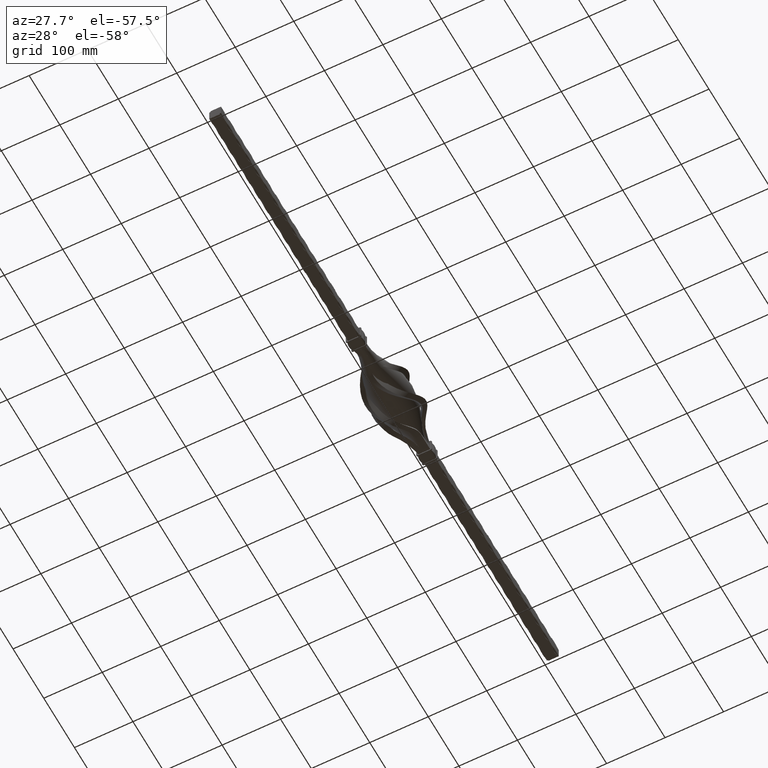
[diagram: clean part render]
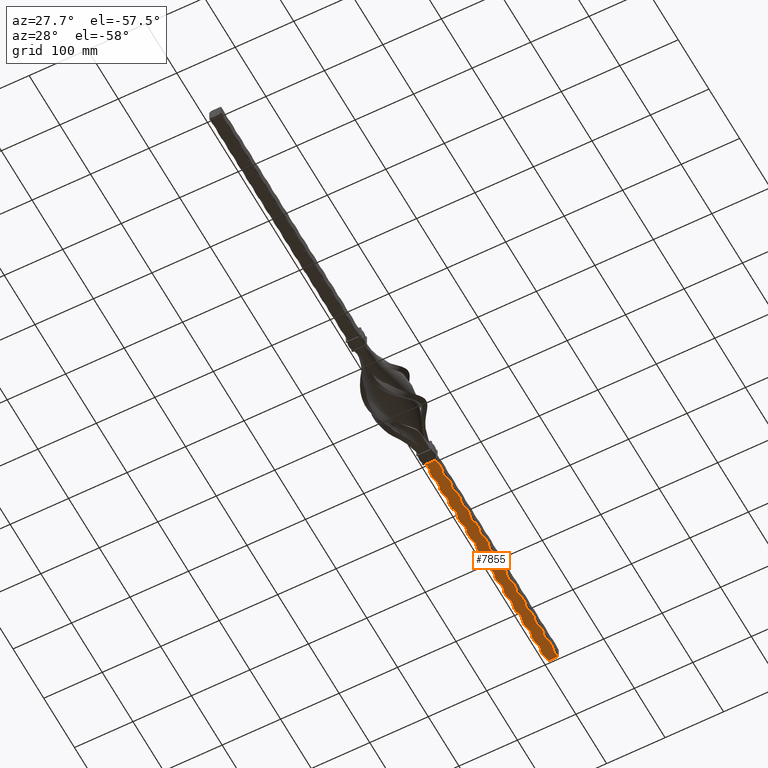
[diagram: same view with one face highlighted and labeled with its STEP entity id]
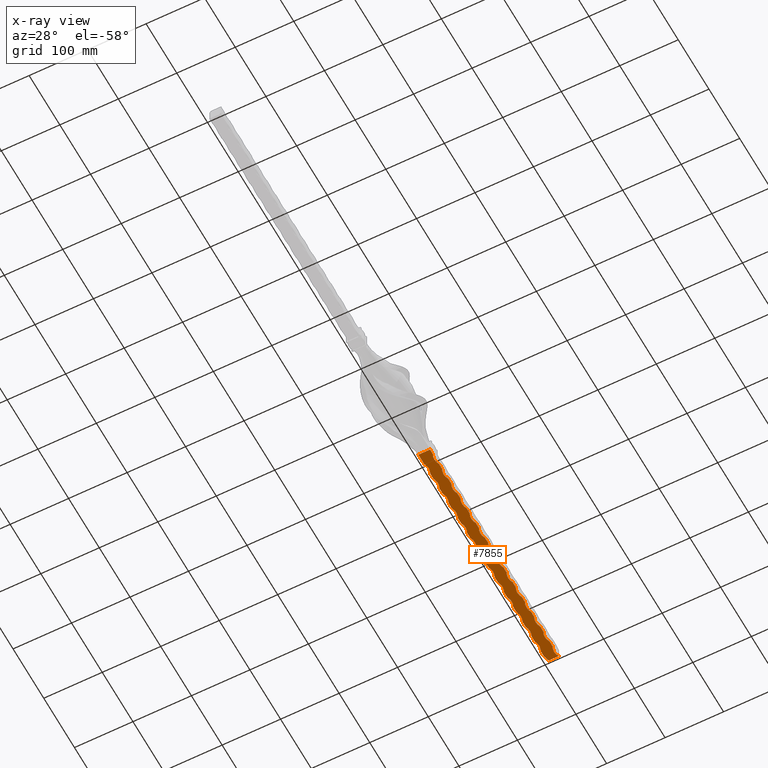
[diagram: x-ray of the same camera — body ghosted, the highlighted face saturated]
A machine part, auxiliary view. The second image highlights one B-rep face of the part: STEP entity #7855.
The next image is the same camera in x-ray: the body ghosted, the highlighted face saturated — about 0% of this face is hidden behind the body in this view.
In plain terms, the highlighted planar face has unit normal (0, -0, 1).
Its self-contained STEP definition (entity closure, byte-faithful):
#59 = DIRECTION ( 'NONE',  ( -0.000000000000000000, -1.000000000000000000, -0.000000000000000000 ) ) ;
#153 = CARTESIAN_POINT ( 'NONE',  ( 28.75000000000003908, 184.9999999999999432, -9.999999999999609201 ) ) ;
#184 = EDGE_CURVE ( 'NONE', #20435, #13915, #7374, .T. ) ;
#218 = CARTESIAN_POINT ( 'NONE',  ( 10.00000000000000178, 434.9999999999999432, -9.999999999999864997 ) ) ;
#244 = DIRECTION ( 'NONE',  ( 1.000000000000000000, 0.000000000000000000, 1.004098764918338334E-14 ) ) ;
#350 = VERTEX_POINT ( 'NONE', #19565 ) ;
#376 = EDGE_CURVE ( 'NONE', #17358, #2939, #22392, .T. ) ;
#385 = VECTOR ( 'NONE', #17832, 1000.000000000000000 ) ;
#523 = DIRECTION ( 'NONE',  ( 1.000000000000000000, 0.000000000000000000, 1.004098764918338334E-14 ) ) ;
#577 = CARTESIAN_POINT ( 'NONE',  ( 10.00000000000000000, 114.9999999999999858, -10.00000000000000355 ) ) ;
#621 = DIRECTION ( 'NONE',  ( 1.000000000000000000, 0.000000000000000000, 1.044915787882498139E-14 ) ) ;
#757 = EDGE_CURVE ( 'NONE', #13436, #22977, #13864, .T. ) ;
#814 = VERTEX_POINT ( 'NONE', #6841 ) ;
#843 = DIRECTION ( 'NONE',  ( -0.000000000000000000, -1.000000000000000000, -0.000000000000000000 ) ) ;
#938 = DIRECTION ( 'NONE',  ( 1.000000000000000000, -5.224578939412490694E-15, 1.044915787882498139E-14 ) ) ;
#971 = VERTEX_POINT ( 'NONE', #22263 ) ;
#1074 = ORIENTED_EDGE ( 'NONE', *, *, #2941, .T. ) ;
#1271 = VECTOR ( 'NONE', #26407, 1000.000000000000000 ) ;
#1278 = ORIENTED_EDGE ( 'NONE', *, *, #10161, .T. ) ;
#1279 = CARTESIAN_POINT ( 'NONE',  ( 28.75000000000003908, 124.9999999999999432, -9.999999999999594991 ) ) ;
#1332 = AXIS2_PLACEMENT_3D ( 'NONE', #11057, #4961, #621 ) ;
#1477 = CARTESIAN_POINT ( 'NONE',  ( -28.74999999999994316, 224.9999999999999716, -10.00000000000029843 ) ) ;
#1480 = CARTESIAN_POINT ( 'NONE',  ( 10.00000000000000000, 114.9999999999999858, -10.00000000000000355 ) ) ;
#1484 = LINE ( 'NONE', #7404, #20395 ) ;
#1590 = VERTEX_POINT ( 'NONE', #14762 ) ;
#1617 = CARTESIAN_POINT ( 'NONE',  ( 28.75000000000003908, 244.9999999999999432, -9.999999999999626965 ) ) ;
#1626 = CARTESIAN_POINT ( 'NONE',  ( -9.999999999999895195, 214.9999999999999716, -10.00000000000010303 ) ) ;
#1649 = DIRECTION ( 'NONE',  ( 1.000000000000000000, 0.000000000000000000, 1.004098764918338334E-14 ) ) ;
#1680 = CARTESIAN_POINT ( 'NONE',  ( -28.74999999999994316, 345.0000000000000000, -10.00000000000029843 ) ) ;
#1796 = VERTEX_POINT ( 'NONE', #10467 ) ;
#1818 = DIRECTION ( 'NONE',  ( -0.000000000000000000, -1.000000000000000000, -0.000000000000000000 ) ) ;
#1819 = VERTEX_POINT ( 'NONE', #14583 ) ;
#1823 = DIRECTION ( 'NONE',  ( 1.000000000000000000, 0.000000000000000000, 1.004098764918338334E-14 ) ) ;
#1853 = EDGE_CURVE ( 'NONE', #23698, #814, #21979, .T. ) ;
#1855 = EDGE_CURVE ( 'NONE', #23836, #16037, #19371, .T. ) ;
#1868 = VERTEX_POINT ( 'NONE', #2561 ) ;
#1896 = VECTOR ( 'NONE', #10402, 1000.000000000000000 ) ;
#1993 = CARTESIAN_POINT ( 'NONE',  ( 28.75000000000003908, 514.9999999999998863, -9.999999999999699796 ) ) ;
#2031 = AXIS2_PLACEMENT_3D ( 'NONE', #19669, #11418, #5057 ) ;
#2075 = CARTESIAN_POINT ( 'NONE',  ( 10.00000000000000000, 114.9999999999999858, -10.00000000000000355 ) ) ;
#2083 = DIRECTION ( 'NONE',  ( -1.040834085586095143E-14, 0.000000000000000000, 1.000000000000000000 ) ) ;
#2206 = EDGE_CURVE ( 'NONE', #3441, #18161, #12496, .T. ) ;
#2292 = DIRECTION ( 'NONE',  ( 1.000000000000000000, 0.000000000000000000, 1.004098764918338334E-14 ) ) ;
#2331 = EDGE_CURVE ( 'NONE', #22323, #17349, #17050, .T. ) ;
#2420 = CARTESIAN_POINT ( 'NONE',  ( 28.75000000000003908, 484.9999999999999432, -9.999999999999692690 ) ) ;
#2424 = CARTESIAN_POINT ( 'NONE',  ( 10.00000000000000000, 114.9999999999999858, -10.00000000000000355 ) ) ;
#2444 = DIRECTION ( 'NONE',  ( -1.074140776324849839E-14, 0.000000000000000000, 1.000000000000000000 ) ) ;
#2449 = ORIENTED_EDGE ( 'NONE', *, *, #17950, .T. ) ;
#2461 = CARTESIAN_POINT ( 'NONE',  ( -10.00000000000000178, 385.0000000000001137, -10.00000000000010303 ) ) ;
#2478 = CARTESIAN_POINT ( 'NONE',  ( 10.00000000000000000, 114.9999999999999858, -10.00000000000000355 ) ) ;
#2561 = CARTESIAN_POINT ( 'NONE',  ( -10.00000000000000178, 505.0000000000001137, -10.00000000000010303 ) ) ;
#2628 = LINE ( 'NONE', #15463, #24136 ) ;
#2683 = CARTESIAN_POINT ( 'NONE',  ( -10.00000000000000178, 475.0000000000002274, -10.00000000000010303 ) ) ;
#2882 = CARTESIAN_POINT ( 'NONE',  ( 28.75000000000003908, 454.9999999999999432, -9.999999999999683808 ) ) ;
#2893 = AXIS2_PLACEMENT_3D ( 'NONE', #21617, #21531, #13308 ) ;
#2910 = CIRCLE ( 'NONE', #26133, 21.25000000000003908 ) ;
#2931 = CARTESIAN_POINT ( 'NONE',  ( 28.75000000000003908, 424.9999999999999432, -9.999999999999676703 ) ) ;
#2939 = VERTEX_POINT ( 'NONE', #16700 ) ;
#2941 = EDGE_CURVE ( 'NONE', #5450, #350, #17018, .T. ) ;
#3040 = DIRECTION ( 'NONE',  ( -1.000000000000000000, 0.000000000000000000, 1.734723475976807094E-16 ) ) ;
#3066 = CARTESIAN_POINT ( 'NONE',  ( -9.758936704211471636, 106.0000000000000000, -10.00000000000000000 ) ) ;
#3084 = CARTESIAN_POINT ( 'NONE',  ( -10.00000000000000000, 106.0000000000000000, -10.00000000000000000 ) ) ;
#3102 = ORIENTED_EDGE ( 'NONE', *, *, #4347, .T. ) ;
#3118 = CARTESIAN_POINT ( 'NONE',  ( 10.00000000000000178, 354.9999999999999432, -9.999999999999849010 ) ) ;
#3134 = CARTESIAN_POINT ( 'NONE',  ( 10.00000000000000178, 474.9999999999999432, -9.999999999999882760 ) ) ;
#3169 = CARTESIAN_POINT ( 'NONE',  ( 10.00000000000000178, 504.9999999999998863, -9.999999999999889866 ) ) ;
#3182 = ORIENTED_EDGE ( 'NONE', *, *, #7121, .F. ) ;
#3197 = VECTOR ( 'NONE', #16110, 1000.000000000000000 ) ;
#3285 = CARTESIAN_POINT ( 'NONE',  ( -9.999999999999895195, 514.9999999999998863, -10.00000000000010303 ) ) ;
#3399 = AXIS2_PLACEMENT_3D ( 'NONE', #12741, #21126, #23824 ) ;
#3441 = VERTEX_POINT ( 'NONE', #18056 ) ;
#3457 = ORIENTED_EDGE ( 'NONE', *, *, #26385, .T. ) ;
#3473 = DIRECTION ( 'NONE',  ( 1.000000000000000000, 0.000000000000000000, 1.004098764918338334E-14 ) ) ;
#3490 = LINE ( 'NONE', #20612, #18167 ) ;
#3550 = AXIS2_PLACEMENT_3D ( 'NONE', #14554, #2083, #8364 ) ;
#3733 = CARTESIAN_POINT ( 'NONE',  ( 28.75000000000003908, 334.9999999999999432, -9.999999999999651834 ) ) ;
#3834 = VECTOR ( 'NONE', #8086, 1000.000000000000000 ) ;
#3898 = VERTEX_POINT ( 'NONE', #8140 ) ;
#3945 = EDGE_CURVE ( 'NONE', #350, #14808, #10787, .T. ) ;
#4067 = LINE ( 'NONE', #15317, #4379 ) ;
#4073 = CARTESIAN_POINT ( 'NONE',  ( -10.00000000000000000, 114.9999999999999858, -10.00000000000000000 ) ) ;
#4134 = CARTESIAN_POINT ( 'NONE',  ( 10.00000000000000000, 106.0000000000000000, -10.00000000000000355 ) ) ;
#4148 = LINE ( 'NONE', #20325, #25629 ) ;
#4221 = CIRCLE ( 'NONE', #3550, 21.25000000000004263 ) ;
#4305 = ORIENTED_EDGE ( 'NONE', *, *, #12556, .F. ) ;
#4310 = ORIENTED_EDGE ( 'NONE', *, *, #9973, .F. ) ;
#4331 = VERTEX_POINT ( 'NONE', #3084 ) ;
#4347 = EDGE_CURVE ( 'NONE', #16748, #4915, #2628, .T. ) ;
#4369 = CARTESIAN_POINT ( 'NONE',  ( -9.999999999999895195, 304.9999999999999432, -10.00000000000010303 ) ) ;
#4379 = VECTOR ( 'NONE', #3040, 1000.000000000000000 ) ;
#4425 = EDGE_CURVE ( 'NONE', #20747, #4988, #23190, .T. ) ;
#4457 = ORIENTED_EDGE ( 'NONE', *, *, #26983, .T. ) ;
#4462 = CARTESIAN_POINT ( 'NONE',  ( 28.75000000000003908, 304.9999999999999432, -9.999999999999642952 ) ) ;
#4501 = DIRECTION ( 'NONE',  ( -0.000000000000000000, -1.000000000000000000, -0.000000000000000000 ) ) ;
#4540 = VECTOR ( 'NONE', #59, 1000.000000000000000 ) ;
#4563 = LINE ( 'NONE', #17731, #22834 ) ;
#4616 = ORIENTED_EDGE ( 'NONE', *, *, #6667, .F. ) ;
#4682 = VERTEX_POINT ( 'NONE', #8819 ) ;
#4690 = ORIENTED_EDGE ( 'NONE', *, *, #15379, .T. ) ;
#4765 = VERTEX_POINT ( 'NONE', #9726 ) ;
#4777 = ORIENTED_EDGE ( 'NONE', *, *, #757, .T. ) ;
#4809 = VECTOR ( 'NONE', #7462, 1000.000000000000000 ) ;
#4829 = LINE ( 'NONE', #18329, #6166 ) ;
#4845 = EDGE_CURVE ( 'NONE', #13087, #1796, #21522, .T. ) ;
#4879 = EDGE_CURVE ( 'NONE', #814, #7009, #7829, .T. ) ;
#4915 = VERTEX_POINT ( 'NONE', #18595 ) ;
#4960 = DIRECTION ( 'NONE',  ( -0.000000000000000000, -1.000000000000000000, -0.000000000000000000 ) ) ;
#4961 = DIRECTION ( 'NONE',  ( -1.040834085586095143E-14, 0.000000000000000000, 1.000000000000000000 ) ) ;
#4988 = VERTEX_POINT ( 'NONE', #18680 ) ;
#5057 = DIRECTION ( 'NONE',  ( 1.000000000000000000, 0.000000000000000000, 1.044915787882498139E-14 ) ) ;
#5092 = CIRCLE ( 'NONE', #14267, 21.25000000000003908 ) ;
#5244 = CARTESIAN_POINT ( 'NONE',  ( -7.499999999999898748, 525.0000000000000000, -10.00000000000009948 ) ) ;
#5444 = CARTESIAN_POINT ( 'NONE',  ( -28.74999999999994316, 284.9999999999999432, -10.00000000000029843 ) ) ;
#5450 = VERTEX_POINT ( 'NONE', #21107 ) ;
#5528 = VERTEX_POINT ( 'NONE', #24430 ) ;
#5533 = CARTESIAN_POINT ( 'NONE',  ( -10.00000000000000000, 114.9999999999999858, -10.00000000000000000 ) ) ;
#5788 = ORIENTED_EDGE ( 'NONE', *, *, #15382, .T. ) ;
#5837 = CARTESIAN_POINT ( 'NONE',  ( -28.74999999999994316, 434.9999999999999432, -10.00000000000029843 ) ) ;
#5899 = VECTOR ( 'NONE', #6291, 1000.000000000000000 ) ;
#5967 = ORIENTED_EDGE ( 'NONE', *, *, #8172, .F. ) ;
#6029 = EDGE_CURVE ( 'NONE', #12705, #25470, #11355, .T. ) ;
#6054 = VECTOR ( 'NONE', #22014, 1000.000000000000000 ) ;
#6104 = EDGE_LOOP ( 'NONE', ( #22287, #15731, #13202, #23541, #18233, #8969, #23546, #20086, #10977, #23890, #8128, #4777, #18609, #20293, #20079, #3102, #15779, #19039, #22007, #19391, #14995, #20958, #1074, #20208, #24630, #5967, #4457, #21040, #7547, #24819, #17759, #16402, #25914, #4310, #3457, #3182, #14089, #18383, #4690, #6431, #12998, #19007, #26570, #11765, #17725, #24560, #2449, #4305, #8036, #4616, #1278, #23035, #16142, #22059, #8696, #26635, #22275, #14706, #17970, #5788 ) ) ;
#6166 = VECTOR ( 'NONE', #26853, 1000.000000000000000 ) ;
#6291 = DIRECTION ( 'NONE',  ( -0.000000000000000000, -1.000000000000000000, -0.000000000000000000 ) ) ;
#6420 = DIRECTION ( 'NONE',  ( 1.000000000000000000, -5.224578939412490694E-15, 1.044915787882498139E-14 ) ) ;
#6431 = ORIENTED_EDGE ( 'NONE', *, *, #7537, .F. ) ;
#6461 = LINE ( 'NONE', #17727, #16895 ) ;
#6465 = CARTESIAN_POINT ( 'NONE',  ( 10.00000000000000178, 164.9999999999999147, -9.999999999999790390 ) ) ;
#6667 = EDGE_CURVE ( 'NONE', #10422, #12225, #6461, .T. ) ;
#6685 = CARTESIAN_POINT ( 'NONE',  ( -28.74999999999994316, 194.9999999999999432, -10.00000000000029843 ) ) ;
#6775 = LINE ( 'NONE', #22266, #1271 ) ;
#6780 = AXIS2_PLACEMENT_3D ( 'NONE', #2420, #24988, #20833 ) ;
#6813 = EDGE_CURVE ( 'NONE', #4915, #1590, #19506, .T. ) ;
#6841 = CARTESIAN_POINT ( 'NONE',  ( 10.00000000000000178, 374.9999999999999432, -9.999999999999849010 ) ) ;
#6867 = PLANE ( 'NONE',  #19479 ) ;
#7009 = VERTEX_POINT ( 'NONE', #3118 ) ;
#7067 = CARTESIAN_POINT ( 'NONE',  ( 10.00000000000000178, 134.9999999999999432, -9.999999999999783284 ) ) ;
#7121 = EDGE_CURVE ( 'NONE', #26282, #8897, #6775, .T. ) ;
#7182 = AXIS2_PLACEMENT_3D ( 'NONE', #24229, #9538, #3473 ) ;
#7271 = CARTESIAN_POINT ( 'NONE',  ( -10.00000000000000178, 445.0000000000001705, -10.00000000000010303 ) ) ;
#7374 = CIRCLE ( 'NONE', #17620, 21.25000000000004263 ) ;
#7393 = DIRECTION ( 'NONE',  ( -1.040834085586095143E-14, 0.000000000000000000, 1.000000000000000000 ) ) ;
#7404 = CARTESIAN_POINT ( 'NONE',  ( 10.00000000000000000, 114.9999999999999858, -10.00000000000000355 ) ) ;
#7445 = CARTESIAN_POINT ( 'NONE',  ( 10.00000000000000178, 384.9999999999998863, -9.999999999999856115 ) ) ;
#7462 = DIRECTION ( 'NONE',  ( -0.000000000000000000, -1.000000000000000000, -0.000000000000000000 ) ) ;
#7537 = EDGE_CURVE ( 'NONE', #20747, #3898, #4148, .T. ) ;
#7547 = ORIENTED_EDGE ( 'NONE', *, *, #9432, .T. ) ;
#7564 = DIRECTION ( 'NONE',  ( -0.000000000000000000, -1.000000000000000000, -0.000000000000000000 ) ) ;
#7589 = EDGE_CURVE ( 'NONE', #14853, #11237, #12324, .T. ) ;
#7829 = CIRCLE ( 'NONE', #7182, 21.25000000000003908 ) ;
#7855 = ADVANCED_FACE ( 'NONE', ( #24383 ), #6867, .F. ) ;
#8036 = ORIENTED_EDGE ( 'NONE', *, *, #11874, .T. ) ;
#8076 = CARTESIAN_POINT ( 'NONE',  ( 10.00000000000000000, 114.9999999999999858, -10.00000000000000355 ) ) ;
#8086 = DIRECTION ( 'NONE',  ( -0.000000000000000000, -1.000000000000000000, -0.000000000000000000 ) ) ;
#8128 = ORIENTED_EDGE ( 'NONE', *, *, #14172, .T. ) ;
#8140 = CARTESIAN_POINT ( 'NONE',  ( -10.00000000000000178, 325.0000000000001705, -10.00000000000010303 ) ) ;
#8172 = EDGE_CURVE ( 'NONE', #9892, #4331, #10991, .T. ) ;
#8217 = CARTESIAN_POINT ( 'NONE',  ( -10.00000000000000178, 265.0000000000001137, -10.00000000000010303 ) ) ;
#8225 = DIRECTION ( 'NONE',  ( 1.000000000000000000, 0.000000000000000000, 1.044915787882498139E-14 ) ) ;
#8320 = CARTESIAN_POINT ( 'NONE',  ( -28.74999999999994316, 134.9999999999999432, -10.00000000000029843 ) ) ;
#8346 = CIRCLE ( 'NONE', #16341, 21.25000000000004263 ) ;
#8364 = DIRECTION ( 'NONE',  ( 1.000000000000000000, 0.000000000000000000, 1.044915787882498139E-14 ) ) ;
#8398 = DIRECTION ( 'NONE',  ( -1.074140776324849839E-14, 0.000000000000000000, 1.000000000000000000 ) ) ;
#8492 = DIRECTION ( 'NONE',  ( -1.074140776324849839E-14, 0.000000000000000000, 1.000000000000000000 ) ) ;
#8611 = EDGE_CURVE ( 'NONE', #22323, #17856, #26285, .T. ) ;
#8696 = ORIENTED_EDGE ( 'NONE', *, *, #6029, .T. ) ;
#8759 = EDGE_CURVE ( 'NONE', #8957, #23836, #5092, .T. ) ;
#8768 = LINE ( 'NONE', #1480, #4809 ) ;
#8819 = CARTESIAN_POINT ( 'NONE',  ( -9.999999999999895195, 244.9999999999999432, -10.00000000000010303 ) ) ;
#8881 = CARTESIAN_POINT ( 'NONE',  ( -9.999999999999895195, 334.9999999999999432, -10.00000000000010303 ) ) ;
#8897 = VERTEX_POINT ( 'NONE', #8217 ) ;
#8899 = VECTOR ( 'NONE', #17118, 1000.000000000000000 ) ;
#8957 = VERTEX_POINT ( 'NONE', #218 ) ;
#8969 = ORIENTED_EDGE ( 'NONE', *, *, #21509, .T. ) ;
#9067 = EDGE_CURVE ( 'NONE', #16037, #23698, #21866, .T. ) ;
#9112 = CARTESIAN_POINT ( 'NONE',  ( -9.999999999999895195, 424.9999999999999432, -10.00000000000010303 ) ) ;
#9204 = DIRECTION ( 'NONE',  ( 1.000000000000000000, 0.000000000000000000, 1.004098764918338334E-14 ) ) ;
#9265 = EDGE_CURVE ( 'NONE', #23185, #14853, #2910, .T. ) ;
#9303 = CARTESIAN_POINT ( 'NONE',  ( -10.00000000000000000, 114.9999999999999858, -10.00000000000000000 ) ) ;
#9332 = DIRECTION ( 'NONE',  ( -1.074140776324849839E-14, 0.000000000000000000, 1.000000000000000000 ) ) ;
#9347 = AXIS2_PLACEMENT_3D ( 'NONE', #2882, #9332, #11328 ) ;
#9432 = EDGE_CURVE ( 'NONE', #971, #17349, #4221, .T. ) ;
#9538 = DIRECTION ( 'NONE',  ( -1.074140776324849839E-14, 0.000000000000000000, 1.000000000000000000 ) ) ;
#9548 = CIRCLE ( 'NONE', #2893, 21.25000000000003908 ) ;
#9597 = VECTOR ( 'NONE', #22844, 1000.000000000000000 ) ;
#9624 = CARTESIAN_POINT ( 'NONE',  ( 10.00000000000000178, 414.9999999999999432, -9.999999999999864997 ) ) ;
#9726 = CARTESIAN_POINT ( 'NONE',  ( -9.999999999999895195, 454.9999999999999432, -10.00000000000010303 ) ) ;
#9776 = LINE ( 'NONE', #26646, #17609 ) ;
#9892 = VERTEX_POINT ( 'NONE', #16532 ) ;
#9973 = EDGE_CURVE ( 'NONE', #4682, #1796, #18580, .T. ) ;
#9978 = CARTESIAN_POINT ( 'NONE',  ( 10.00000000000000178, 294.9999999999999432, -9.999999999999831246 ) ) ;
#10039 = CARTESIAN_POINT ( 'NONE',  ( -9.999999999999895195, 364.9999999999999432, -10.00000000000010303 ) ) ;
#10122 = DIRECTION ( 'NONE',  ( -0.000000000000000000, -1.000000000000000000, -0.000000000000000000 ) ) ;
#10161 = EDGE_CURVE ( 'NONE', #10422, #1868, #11337, .T. ) ;
#10184 = LINE ( 'NONE', #15342, #26135 ) ;
#10220 = CIRCLE ( 'NONE', #9347, 21.25000000000003908 ) ;
#10402 = DIRECTION ( 'NONE',  ( -0.000000000000000000, -1.000000000000000000, -0.000000000000000000 ) ) ;
#10422 = VERTEX_POINT ( 'NONE', #18797 ) ;
#10435 = DIRECTION ( 'NONE',  ( -1.040834085586095143E-14, 0.000000000000000000, 1.000000000000000000 ) ) ;
#10467 = CARTESIAN_POINT ( 'NONE',  ( -10.00000000000000178, 235.0000000000001705, -10.00000000000010303 ) ) ;
#10665 = DIRECTION ( 'NONE',  ( -1.040834085586095143E-14, 0.000000000000000000, 1.000000000000000000 ) ) ;
#10683 = EDGE_CURVE ( 'NONE', #1819, #2939, #26642, .T. ) ;
#10771 = DIRECTION ( 'NONE',  ( -1.040834085586095143E-14, 0.000000000000000000, 1.000000000000000000 ) ) ;
#10787 = LINE ( 'NONE', #19180, #24807 ) ;
#10821 = DIRECTION ( 'NONE',  ( 1.000000000000000000, 0.000000000000000000, 1.004098764918338334E-14 ) ) ;
#10839 = VECTOR ( 'NONE', #20938, 1000.000000000000000 ) ;
#10856 = VERTEX_POINT ( 'NONE', #3134 ) ;
#10977 = ORIENTED_EDGE ( 'NONE', *, *, #21905, .T. ) ;
#10991 = LINE ( 'NONE', #14788, #1896 ) ;
#11045 = CARTESIAN_POINT ( 'NONE',  ( 10.00000000000000000, 114.9999999999999858, -10.00000000000000355 ) ) ;
#11057 = CARTESIAN_POINT ( 'NONE',  ( -28.74999999999994316, 464.9999999999999432, -10.00000000000029843 ) ) ;
#11083 = AXIS2_PLACEMENT_3D ( 'NONE', #18923, #23195, #6420 ) ;
#11100 = CARTESIAN_POINT ( 'NONE',  ( -10.00000000000000000, 114.9999999999999858, -10.00000000000000000 ) ) ;
#11132 = DIRECTION ( 'NONE',  ( 1.734723475976807094E-16, -0.000000000000000000, 1.000000000000000000 ) ) ;
#11233 = LINE ( 'NONE', #13595, #15483 ) ;
#11237 = VERTEX_POINT ( 'NONE', #17132 ) ;
#11328 = DIRECTION ( 'NONE',  ( 1.000000000000000000, 0.000000000000000000, 1.004098764918338334E-14 ) ) ;
#11337 = CIRCLE ( 'NONE', #11541, 21.25000000000004263 ) ;
#11338 = CIRCLE ( 'NONE', #12917, 21.25000000000003908 ) ;
#11355 = CIRCLE ( 'NONE', #26051, 21.25000000000003908 ) ;
#11418 = DIRECTION ( 'NONE',  ( -1.040834085586095143E-14, 0.000000000000000000, 1.000000000000000000 ) ) ;
#11444 = VERTEX_POINT ( 'NONE', #7271 ) ;
#11488 = DIRECTION ( 'NONE',  ( -0.000000000000000000, -1.000000000000000000, -0.000000000000000000 ) ) ;
#11541 = AXIS2_PLACEMENT_3D ( 'NONE', #26046, #7393, #938 ) ;
#11602 = EDGE_CURVE ( 'NONE', #971, #16957, #3490, .T. ) ;
#11621 = CIRCLE ( 'NONE', #1332, 21.25000000000004263 ) ;
#11649 = CARTESIAN_POINT ( 'NONE',  ( 10.00000000000000178, 224.9999999999999716, -9.999999999999808153 ) ) ;
#11765 = ORIENTED_EDGE ( 'NONE', *, *, #16953, .F. ) ;
#11874 = EDGE_CURVE ( 'NONE', #4765, #12225, #11621, .T. ) ;
#11890 = DIRECTION ( 'NONE',  ( -1.040834085586095143E-14, 0.000000000000000000, 1.000000000000000000 ) ) ;
#11917 = DIRECTION ( 'NONE',  ( -1.074140776324849839E-14, 0.000000000000000000, 1.000000000000000000 ) ) ;
#12225 = VERTEX_POINT ( 'NONE', #2683 ) ;
#12289 = DIRECTION ( 'NONE',  ( -1.040834085586095143E-14, 0.000000000000000000, 1.000000000000000000 ) ) ;
#12309 = LINE ( 'NONE', #5533, #3197 ) ;
#12324 = LINE ( 'NONE', #2075, #3834 ) ;
#12496 = LINE ( 'NONE', #577, #24886 ) ;
#12556 = EDGE_CURVE ( 'NONE', #4765, #11444, #11233, .T. ) ;
#12670 = CARTESIAN_POINT ( 'NONE',  ( 10.00000000000000178, 254.9999999999999432, -9.999999999999817035 ) ) ;
#12705 = VERTEX_POINT ( 'NONE', #25667 ) ;
#12725 = LINE ( 'NONE', #14585, #5899 ) ;
#12741 = CARTESIAN_POINT ( 'NONE',  ( -28.74999999999994316, 404.9999999999999432, -10.00000000000029843 ) ) ;
#12917 = AXIS2_PLACEMENT_3D ( 'NONE', #1279, #20691, #24213 ) ;
#12962 = AXIS2_PLACEMENT_3D ( 'NONE', #26539, #11890, #16454 ) ;
#12998 = ORIENTED_EDGE ( 'NONE', *, *, #4425, .T. ) ;
#13087 = VERTEX_POINT ( 'NONE', #1626 ) ;
#13202 = ORIENTED_EDGE ( 'NONE', *, *, #9067, .T. ) ;
#13308 = DIRECTION ( 'NONE',  ( 1.000000000000000000, 0.000000000000000000, 1.004098764918338334E-14 ) ) ;
#13436 = VERTEX_POINT ( 'NONE', #20098 ) ;
#13595 = CARTESIAN_POINT ( 'NONE',  ( -10.00000000000000000, 114.9999999999999858, -10.00000000000000000 ) ) ;
#13679 = CIRCLE ( 'NONE', #21475, 21.25000000000003908 ) ;
#13864 = LINE ( 'NONE', #2424, #19742 ) ;
#13915 = VERTEX_POINT ( 'NONE', #5244 ) ;
#14052 = DIRECTION ( 'NONE',  ( -1.040834085586095143E-14, 0.000000000000000000, 1.000000000000000000 ) ) ;
#14089 = ORIENTED_EDGE ( 'NONE', *, *, #26357, .T. ) ;
#14172 = EDGE_CURVE ( 'NONE', #18866, #13436, #9548, .T. ) ;
#14267 = AXIS2_PLACEMENT_3D ( 'NONE', #2931, #21715, #9204 ) ;
#14449 = VERTEX_POINT ( 'NONE', #10039 ) ;
#14554 = CARTESIAN_POINT ( 'NONE',  ( -28.74999999999994316, 164.9999999999999147, -10.00000000000029843 ) ) ;
#14583 = CARTESIAN_POINT ( 'NONE',  ( -9.999999999999895195, 394.9999999999998863, -10.00000000000010303 ) ) ;
#14585 = CARTESIAN_POINT ( 'NONE',  ( 10.00000000000000000, 114.9999999999999858, -10.00000000000000355 ) ) ;
#14600 = CARTESIAN_POINT ( 'NONE',  ( 10.00000000000000178, 114.9999999999999289, -9.999999999999783284 ) ) ;
#14697 = DIRECTION ( 'NONE',  ( -1.074140776324849839E-14, 0.000000000000000000, 1.000000000000000000 ) ) ;
#14702 = CARTESIAN_POINT ( 'NONE',  ( 10.00000000000000178, 444.9999999999999432, -9.999999999999873879 ) ) ;
#14704 = AXIS2_PLACEMENT_3D ( 'NONE', #1680, #14052, #20463 ) ;
#14706 = ORIENTED_EDGE ( 'NONE', *, *, #22696, .T. ) ;
#14762 = CARTESIAN_POINT ( 'NONE',  ( 10.00000000000000178, 174.9999999999999432, -9.999999999999799272 ) ) ;
#14788 = CARTESIAN_POINT ( 'NONE',  ( -10.00000000000000000, 114.9999999999999858, -10.00000000000000000 ) ) ;
#14808 = VERTEX_POINT ( 'NONE', #3066 ) ;
#14853 = VERTEX_POINT ( 'NONE', #25923 ) ;
#14911 = CARTESIAN_POINT ( 'NONE',  ( 28.75000000000003908, 214.9999999999999716, -9.999999999999618083 ) ) ;
#14995 = ORIENTED_EDGE ( 'NONE', *, *, #23779, .T. ) ;
#15268 = EDGE_CURVE ( 'NONE', #20467, #15848, #10220, .T. ) ;
#15293 = CIRCLE ( 'NONE', #16763, 21.25000000000003908 ) ;
#15317 = CARTESIAN_POINT ( 'NONE',  ( 10.00000000000000000, 106.0000000000000000, -10.00000000000000355 ) ) ;
#15342 = CARTESIAN_POINT ( 'NONE',  ( 10.00000000000000000, 114.9999999999999858, -10.00000000000000355 ) ) ;
#15379 = EDGE_CURVE ( 'NONE', #24857, #3898, #21972, .T. ) ;
#15382 = EDGE_CURVE ( 'NONE', #15848, #8957, #10184, .T. ) ;
#15463 = CARTESIAN_POINT ( 'NONE',  ( 10.00000000000000000, 114.9999999999999858, -10.00000000000000355 ) ) ;
#15483 = VECTOR ( 'NONE', #10122, 1000.000000000000000 ) ;
#15571 = CARTESIAN_POINT ( 'NONE',  ( 10.00000000000000178, 464.9999999999999432, -9.999999999999873879 ) ) ;
#15574 = AXIS2_PLACEMENT_3D ( 'NONE', #1477, #22237, #24398 ) ;
#15617 = CARTESIAN_POINT ( 'NONE',  ( -10.00000000000000000, 114.9999999999999858, -10.00000000000000000 ) ) ;
#15731 = ORIENTED_EDGE ( 'NONE', *, *, #1855, .T. ) ;
#15779 = ORIENTED_EDGE ( 'NONE', *, *, #6813, .T. ) ;
#15802 = DIRECTION ( 'NONE',  ( -0.000000000000000000, -1.000000000000000000, -0.000000000000000000 ) ) ;
#15816 = EDGE_CURVE ( 'NONE', #14449, #20672, #17376, .T. ) ;
#15822 = DIRECTION ( 'NONE',  ( 1.000000000000000000, 0.000000000000000000, 1.004098764918338334E-14 ) ) ;
#15848 = VERTEX_POINT ( 'NONE', #14702 ) ;
#16015 = VERTEX_POINT ( 'NONE', #17808 ) ;
#16037 = VERTEX_POINT ( 'NONE', #24075 ) ;
#16056 = DIRECTION ( 'NONE',  ( -0.000000000000000000, -1.000000000000000000, -0.000000000000000000 ) ) ;
#16110 = DIRECTION ( 'NONE',  ( -0.000000000000000000, -1.000000000000000000, -0.000000000000000000 ) ) ;
#16142 = ORIENTED_EDGE ( 'NONE', *, *, #184, .T. ) ;
#16185 = DIRECTION ( 'NONE',  ( -1.074140776324849839E-14, 0.000000000000000000, 1.000000000000000000 ) ) ;
#16341 = AXIS2_PLACEMENT_3D ( 'NONE', #8320, #10665, #8225 ) ;
#16402 = ORIENTED_EDGE ( 'NONE', *, *, #18740, .F. ) ;
#16454 = DIRECTION ( 'NONE',  ( 1.000000000000000000, -5.224578939412490694E-15, 1.044915787882498139E-14 ) ) ;
#16532 = CARTESIAN_POINT ( 'NONE',  ( -9.999999999999895195, 124.9999999999999432, -10.00000000000010303 ) ) ;
#16700 = CARTESIAN_POINT ( 'NONE',  ( -10.00000000000000178, 415.0000000000001705, -10.00000000000010303 ) ) ;
#16748 = VERTEX_POINT ( 'NONE', #21121 ) ;
#16763 = AXIS2_PLACEMENT_3D ( 'NONE', #14911, #2444, #523 ) ;
#16776 = VECTOR ( 'NONE', #15802, 1000.000000000000000 ) ;
#16895 = VECTOR ( 'NONE', #23909, 1000.000000000000000 ) ;
#16909 = CARTESIAN_POINT ( 'NONE',  ( -28.74999999999994316, 524.9999999999998863, -10.00000000000029843 ) ) ;
#16953 = EDGE_CURVE ( 'NONE', #1819, #20672, #18640, .T. ) ;
#16957 = VERTEX_POINT ( 'NONE', #17938 ) ;
#17018 = LINE ( 'NONE', #4134, #23871 ) ;
#17027 = LINE ( 'NONE', #22171, #18365 ) ;
#17037 = CARTESIAN_POINT ( 'NONE',  ( 28.75000000000003908, 394.9999999999998863, -9.999999999999667821 ) ) ;
#17050 = LINE ( 'NONE', #4073, #10839 ) ;
#17118 = DIRECTION ( 'NONE',  ( -0.000000000000000000, -1.000000000000000000, -0.000000000000000000 ) ) ;
#17132 = CARTESIAN_POINT ( 'NONE',  ( 10.00000000000000178, 314.9999999999999432, -9.999999999999831246 ) ) ;
#17349 = VERTEX_POINT ( 'NONE', #21712 ) ;
#17358 = VERTEX_POINT ( 'NONE', #9112 ) ;
#17376 = CIRCLE ( 'NONE', #11083, 21.25000000000004263 ) ;
#17381 = VECTOR ( 'NONE', #20886, 1000.000000000000000 ) ;
#17609 = VECTOR ( 'NONE', #18306, 1000.000000000000000 ) ;
#17620 = AXIS2_PLACEMENT_3D ( 'NONE', #16909, #10435, #23143 ) ;
#17644 = CARTESIAN_POINT ( 'NONE',  ( -9.999999999999895195, 274.9999999999998863, -10.00000000000010303 ) ) ;
#17725 = ORIENTED_EDGE ( 'NONE', *, *, #10683, .T. ) ;
#17727 = CARTESIAN_POINT ( 'NONE',  ( -10.00000000000000000, 114.9999999999999858, -10.00000000000000000 ) ) ;
#17731 = CARTESIAN_POINT ( 'NONE',  ( 10.00000000000000000, 114.9999999999999858, -10.00000000000000355 ) ) ;
#17759 = ORIENTED_EDGE ( 'NONE', *, *, #8611, .T. ) ;
#17765 = VERTEX_POINT ( 'NONE', #11649 ) ;
#17808 = CARTESIAN_POINT ( 'NONE',  ( 10.00000000000000178, 494.9999999999999432, -9.999999999999882760 ) ) ;
#17832 = DIRECTION ( 'NONE',  ( -0.000000000000000000, -1.000000000000000000, -0.000000000000000000 ) ) ;
#17856 = VERTEX_POINT ( 'NONE', #18073 ) ;
#17938 = CARTESIAN_POINT ( 'NONE',  ( -10.00000000000000178, 145.0000000000001705, -10.00000000000010303 ) ) ;
#17950 = EDGE_CURVE ( 'NONE', #17358, #11444, #25742, .T. ) ;
#17970 = ORIENTED_EDGE ( 'NONE', *, *, #15268, .T. ) ;
#18056 = CARTESIAN_POINT ( 'NONE',  ( 10.00000000000000178, 144.9999999999999147, -9.999999999999790390 ) ) ;
#18073 = CARTESIAN_POINT ( 'NONE',  ( -10.00000000000000178, 205.0000000000001421, -10.00000000000010303 ) ) ;
#18161 = VERTEX_POINT ( 'NONE', #7067 ) ;
#18167 = VECTOR ( 'NONE', #20789, 1000.000000000000000 ) ;
#18233 = ORIENTED_EDGE ( 'NONE', *, *, #4879, .T. ) ;
#18306 = DIRECTION ( 'NONE',  ( -0.000000000000000000, -1.000000000000000000, -0.000000000000000000 ) ) ;
#18329 = CARTESIAN_POINT ( 'NONE',  ( 9.999999999999998224, 525.0000000000000000, -9.999999999999994671 ) ) ;
#18365 = VECTOR ( 'NONE', #16056, 1000.000000000000000 ) ;
#18383 = ORIENTED_EDGE ( 'NONE', *, *, #25510, .F. ) ;
#18485 = AXIS2_PLACEMENT_3D ( 'NONE', #6685, #10771, #25517 ) ;
#18505 = EDGE_CURVE ( 'NONE', #23001, #5450, #21655, .T. ) ;
#18506 = DIRECTION ( 'NONE',  ( -1.074140776324849839E-14, 0.000000000000000000, 1.000000000000000000 ) ) ;
#18552 = CARTESIAN_POINT ( 'NONE',  ( 28.75000000000003908, 154.9999999999999147, -9.999999999999602096 ) ) ;
#18580 = LINE ( 'NONE', #22925, #4540 ) ;
#18595 = CARTESIAN_POINT ( 'NONE',  ( 10.00000000000000178, 194.9999999999999432, -9.999999999999799272 ) ) ;
#18609 = ORIENTED_EDGE ( 'NONE', *, *, #19735, .T. ) ;
#18640 = LINE ( 'NONE', #24369, #385 ) ;
#18657 = EDGE_CURVE ( 'NONE', #14808, #4331, #4067, .T. ) ;
#18671 = CARTESIAN_POINT ( 'NONE',  ( -9.999999999999895195, 184.9999999999999432, -10.00000000000010303 ) ) ;
#18680 = CARTESIAN_POINT ( 'NONE',  ( -10.00000000000000178, 355.0000000000002274, -10.00000000000010303 ) ) ;
#18740 = EDGE_CURVE ( 'NONE', #13087, #17856, #25555, .T. ) ;
#18744 = EDGE_CURVE ( 'NONE', #1590, #24868, #1484, .T. ) ;
#18797 = CARTESIAN_POINT ( 'NONE',  ( -9.999999999999895195, 484.9999999999999432, -10.00000000000010303 ) ) ;
#18823 = CIRCLE ( 'NONE', #12962, 21.25000000000004263 ) ;
#18866 = VERTEX_POINT ( 'NONE', #20101 ) ;
#18923 = CARTESIAN_POINT ( 'NONE',  ( -28.74999999999994316, 374.9999999999999432, -10.00000000000029843 ) ) ;
#19007 = ORIENTED_EDGE ( 'NONE', *, *, #25906, .F. ) ;
#19039 = ORIENTED_EDGE ( 'NONE', *, *, #18744, .T. ) ;
#19065 = DIRECTION ( 'NONE',  ( -1.074140776324849839E-14, 0.000000000000000000, 1.000000000000000000 ) ) ;
#19091 = CARTESIAN_POINT ( 'NONE',  ( -10.00000000000000178, 295.0000000000001705, -10.00000000000010303 ) ) ;
#19174 = DIRECTION ( 'NONE',  ( -0.000000000000000000, -1.000000000000000000, -0.000000000000000000 ) ) ;
#19180 = CARTESIAN_POINT ( 'NONE',  ( 10.00000000000000000, 106.0000000000000000, -10.00000000000000355 ) ) ;
#19352 = VECTOR ( 'NONE', #843, 1000.000000000000000 ) ;
#19371 = LINE ( 'NONE', #22987, #8899 ) ;
#19391 = ORIENTED_EDGE ( 'NONE', *, *, #2206, .T. ) ;
#19479 = AXIS2_PLACEMENT_3D ( 'NONE', #11045, #11132, #25624 ) ;
#19506 = CIRCLE ( 'NONE', #25528, 21.25000000000003908 ) ;
#19565 = CARTESIAN_POINT ( 'NONE',  ( 6.591949208711866959E-14, 106.0000000000000000, -9.999999999999980460 ) ) ;
#19669 = CARTESIAN_POINT ( 'NONE',  ( -28.74999999999994316, 314.9999999999999432, -10.00000000000029843 ) ) ;
#19690 = DIRECTION ( 'NONE',  ( -0.000000000000000000, -1.000000000000000000, -0.000000000000000000 ) ) ;
#19735 = EDGE_CURVE ( 'NONE', #22977, #5528, #23276, .T. ) ;
#19742 = VECTOR ( 'NONE', #4501, 1000.000000000000000 ) ;
#19857 = EDGE_CURVE ( 'NONE', #16015, #10856, #26500, .T. ) ;
#19982 = EDGE_CURVE ( 'NONE', #20435, #1868, #24869, .T. ) ;
#20043 = DIRECTION ( 'NONE',  ( -1.040834085586095143E-14, 0.000000000000000000, 1.000000000000000000 ) ) ;
#20079 = ORIENTED_EDGE ( 'NONE', *, *, #22418, .T. ) ;
#20086 = ORIENTED_EDGE ( 'NONE', *, *, #7589, .T. ) ;
#20098 = CARTESIAN_POINT ( 'NONE',  ( 10.00000000000000178, 264.9999999999998863, -9.999999999999824141 ) ) ;
#20101 = CARTESIAN_POINT ( 'NONE',  ( 10.00000000000000178, 284.9999999999999432, -9.999999999999824141 ) ) ;
#20109 = EDGE_CURVE ( 'NONE', #5528, #17765, #17027, .T. ) ;
#20208 = ORIENTED_EDGE ( 'NONE', *, *, #3945, .T. ) ;
#20293 = ORIENTED_EDGE ( 'NONE', *, *, #20109, .T. ) ;
#20325 = CARTESIAN_POINT ( 'NONE',  ( -10.00000000000000000, 114.9999999999999858, -10.00000000000000000 ) ) ;
#20395 = VECTOR ( 'NONE', #11488, 1000.000000000000000 ) ;
#20435 = VERTEX_POINT ( 'NONE', #3285 ) ;
#20440 = DIRECTION ( 'NONE',  ( 1.000000000000000000, 0.000000000000000000, 1.044915787882498139E-14 ) ) ;
#20463 = DIRECTION ( 'NONE',  ( 1.000000000000000000, 0.000000000000000000, 1.044915787882498139E-14 ) ) ;
#20467 = VERTEX_POINT ( 'NONE', #15571 ) ;
#20612 = CARTESIAN_POINT ( 'NONE',  ( -10.00000000000000000, 114.9999999999999858, -10.00000000000000000 ) ) ;
#20672 = VERTEX_POINT ( 'NONE', #2461 ) ;
#20691 = DIRECTION ( 'NONE',  ( -1.074140776324849839E-14, 0.000000000000000000, 1.000000000000000000 ) ) ;
#20747 = VERTEX_POINT ( 'NONE', #8881 ) ;
#20789 = DIRECTION ( 'NONE',  ( -0.000000000000000000, -1.000000000000000000, -0.000000000000000000 ) ) ;
#20833 = DIRECTION ( 'NONE',  ( 1.000000000000000000, 0.000000000000000000, 1.004098764918338334E-14 ) ) ;
#20886 = DIRECTION ( 'NONE',  ( -0.000000000000000000, -1.000000000000000000, -0.000000000000000000 ) ) ;
#20938 = DIRECTION ( 'NONE',  ( -0.000000000000000000, -1.000000000000000000, -0.000000000000000000 ) ) ;
#20958 = ORIENTED_EDGE ( 'NONE', *, *, #18505, .T. ) ;
#21014 = VERTEX_POINT ( 'NONE', #9978 ) ;
#21040 = ORIENTED_EDGE ( 'NONE', *, *, #11602, .F. ) ;
#21107 = CARTESIAN_POINT ( 'NONE',  ( 10.00000000000000000, 106.0000000000000000, -10.00000000000000355 ) ) ;
#21121 = CARTESIAN_POINT ( 'NONE',  ( 10.00000000000000178, 204.9999999999999716, -9.999999999999808153 ) ) ;
#21126 = DIRECTION ( 'NONE',  ( -1.040834085586095143E-14, 0.000000000000000000, 1.000000000000000000 ) ) ;
#21172 = DIRECTION ( 'NONE',  ( -1.000000000000000000, 0.000000000000000000, 1.734723475976807094E-16 ) ) ;
#21475 = AXIS2_PLACEMENT_3D ( 'NONE', #18552, #8492, #23008 ) ;
#21509 = EDGE_CURVE ( 'NONE', #7009, #23185, #12725, .T. ) ;
#21522 = CIRCLE ( 'NONE', #15574, 21.25000000000004263 ) ;
#21531 = DIRECTION ( 'NONE',  ( -1.074140776324849839E-14, 0.000000000000000000, 1.000000000000000000 ) ) ;
#21617 = CARTESIAN_POINT ( 'NONE',  ( 28.75000000000003908, 274.9999999999998863, -9.999999999999634070 ) ) ;
#21655 = LINE ( 'NONE', #8076, #9597 ) ;
#21712 = CARTESIAN_POINT ( 'NONE',  ( -10.00000000000000178, 175.0000000000001137, -10.00000000000010303 ) ) ;
#21715 = DIRECTION ( 'NONE',  ( -1.074140776324849839E-14, 0.000000000000000000, 1.000000000000000000 ) ) ;
#21866 = CIRCLE ( 'NONE', #23512, 21.25000000000003908 ) ;
#21905 = EDGE_CURVE ( 'NONE', #11237, #21014, #23825, .T. ) ;
#21972 = CIRCLE ( 'NONE', #2031, 21.25000000000004263 ) ;
#21979 = LINE ( 'NONE', #2478, #17381 ) ;
#22007 = ORIENTED_EDGE ( 'NONE', *, *, #22878, .T. ) ;
#22014 = DIRECTION ( 'NONE',  ( -0.000000000000000000, -1.000000000000000000, -0.000000000000000000 ) ) ;
#22059 = ORIENTED_EDGE ( 'NONE', *, *, #23394, .F. ) ;
#22171 = CARTESIAN_POINT ( 'NONE',  ( 10.00000000000000000, 114.9999999999999858, -10.00000000000000355 ) ) ;
#22204 = EDGE_CURVE ( 'NONE', #25470, #16015, #9776, .T. ) ;
#22237 = DIRECTION ( 'NONE',  ( -1.040834085586095143E-14, 0.000000000000000000, 1.000000000000000000 ) ) ;
#22263 = CARTESIAN_POINT ( 'NONE',  ( -9.999999999999895195, 154.9999999999999147, -10.00000000000010303 ) ) ;
#22266 = CARTESIAN_POINT ( 'NONE',  ( -10.00000000000000000, 114.9999999999999858, -10.00000000000000000 ) ) ;
#22275 = ORIENTED_EDGE ( 'NONE', *, *, #19857, .T. ) ;
#22287 = ORIENTED_EDGE ( 'NONE', *, *, #8759, .T. ) ;
#22323 = VERTEX_POINT ( 'NONE', #18671 ) ;
#22392 = LINE ( 'NONE', #15617, #6054 ) ;
#22409 = AXIS2_PLACEMENT_3D ( 'NONE', #5837, #12289, #20440 ) ;
#22418 = EDGE_CURVE ( 'NONE', #17765, #16748, #15293, .T. ) ;
#22696 = EDGE_CURVE ( 'NONE', #10856, #20467, #4563, .T. ) ;
#22834 = VECTOR ( 'NONE', #26070, 1000.000000000000000 ) ;
#22844 = DIRECTION ( 'NONE',  ( -0.000000000000000000, -1.000000000000000000, -0.000000000000000000 ) ) ;
#22878 = EDGE_CURVE ( 'NONE', #24868, #3441, #13679, .T. ) ;
#22925 = CARTESIAN_POINT ( 'NONE',  ( -10.00000000000000000, 114.9999999999999858, -10.00000000000000000 ) ) ;
#22977 = VERTEX_POINT ( 'NONE', #12670 ) ;
#22987 = CARTESIAN_POINT ( 'NONE',  ( 10.00000000000000000, 114.9999999999999858, -10.00000000000000355 ) ) ;
#23001 = VERTEX_POINT ( 'NONE', #14600 ) ;
#23008 = DIRECTION ( 'NONE',  ( 1.000000000000000000, 0.000000000000000000, 1.004098764918338334E-14 ) ) ;
#23035 = ORIENTED_EDGE ( 'NONE', *, *, #19982, .F. ) ;
#23132 = VERTEX_POINT ( 'NONE', #19091 ) ;
#23143 = DIRECTION ( 'NONE',  ( 1.000000000000000000, -6.269494727294989464E-14, 1.044915787882498139E-14 ) ) ;
#23185 = VERTEX_POINT ( 'NONE', #25946 ) ;
#23190 = CIRCLE ( 'NONE', #14704, 21.25000000000004263 ) ;
#23195 = DIRECTION ( 'NONE',  ( -1.040834085586095143E-14, 0.000000000000000000, 1.000000000000000000 ) ) ;
#23276 = CIRCLE ( 'NONE', #23865, 21.25000000000003908 ) ;
#23394 = EDGE_CURVE ( 'NONE', #12705, #13915, #4829, .T. ) ;
#23512 = AXIS2_PLACEMENT_3D ( 'NONE', #17037, #8398, #10821 ) ;
#23541 = ORIENTED_EDGE ( 'NONE', *, *, #1853, .T. ) ;
#23546 = ORIENTED_EDGE ( 'NONE', *, *, #9265, .T. ) ;
#23698 = VERTEX_POINT ( 'NONE', #7445 ) ;
#23779 = EDGE_CURVE ( 'NONE', #18161, #23001, #11338, .T. ) ;
#23824 = DIRECTION ( 'NONE',  ( 1.000000000000000000, 0.000000000000000000, 1.044915787882498139E-14 ) ) ;
#23825 = CIRCLE ( 'NONE', #25296, 21.25000000000003908 ) ;
#23836 = VERTEX_POINT ( 'NONE', #9624 ) ;
#23865 = AXIS2_PLACEMENT_3D ( 'NONE', #1617, #16185, #15822 ) ;
#23871 = VECTOR ( 'NONE', #25066, 1000.000000000000000 ) ;
#23890 = ORIENTED_EDGE ( 'NONE', *, *, #24103, .T. ) ;
#23909 = DIRECTION ( 'NONE',  ( -0.000000000000000000, -1.000000000000000000, -0.000000000000000000 ) ) ;
#24051 = CARTESIAN_POINT ( 'NONE',  ( -10.00000000000000000, 114.9999999999999858, -10.00000000000000000 ) ) ;
#24075 = CARTESIAN_POINT ( 'NONE',  ( 10.00000000000000178, 404.9999999999999432, -9.999999999999856115 ) ) ;
#24103 = EDGE_CURVE ( 'NONE', #21014, #18866, #8768, .T. ) ;
#24136 = VECTOR ( 'NONE', #19690, 1000.000000000000000 ) ;
#24213 = DIRECTION ( 'NONE',  ( 1.000000000000000000, 0.000000000000000000, 1.004098764918338334E-14 ) ) ;
#24229 = CARTESIAN_POINT ( 'NONE',  ( 28.75000000000003908, 364.9999999999999432, -9.999999999999660716 ) ) ;
#24369 = CARTESIAN_POINT ( 'NONE',  ( -10.00000000000000000, 114.9999999999999858, -10.00000000000000000 ) ) ;
#24383 = FACE_OUTER_BOUND ( 'NONE', #6104, .T. ) ;
#24398 = DIRECTION ( 'NONE',  ( 1.000000000000000000, 0.000000000000000000, 1.044915787882498139E-14 ) ) ;
#24430 = CARTESIAN_POINT ( 'NONE',  ( 10.00000000000000178, 234.9999999999999432, -9.999999999999817035 ) ) ;
#24560 = ORIENTED_EDGE ( 'NONE', *, *, #376, .F. ) ;
#24630 = ORIENTED_EDGE ( 'NONE', *, *, #18657, .T. ) ;
#24807 = VECTOR ( 'NONE', #21172, 1000.000000000000000 ) ;
#24819 = ORIENTED_EDGE ( 'NONE', *, *, #2331, .F. ) ;
#24857 = VERTEX_POINT ( 'NONE', #4369 ) ;
#24868 = VERTEX_POINT ( 'NONE', #6465 ) ;
#24869 = LINE ( 'NONE', #11100, #19352 ) ;
#24886 = VECTOR ( 'NONE', #19174, 1000.000000000000000 ) ;
#24988 = DIRECTION ( 'NONE',  ( -1.074140776324849839E-14, 0.000000000000000000, 1.000000000000000000 ) ) ;
#25066 = DIRECTION ( 'NONE',  ( -1.000000000000000000, 0.000000000000000000, 1.734723475976807094E-16 ) ) ;
#25296 = AXIS2_PLACEMENT_3D ( 'NONE', #4462, #19065, #2292 ) ;
#25316 = VECTOR ( 'NONE', #7564, 1000.000000000000000 ) ;
#25470 = VERTEX_POINT ( 'NONE', #3169 ) ;
#25510 = EDGE_CURVE ( 'NONE', #24857, #23132, #12309, .T. ) ;
#25517 = DIRECTION ( 'NONE',  ( 1.000000000000000000, 0.000000000000000000, 1.044915787882498139E-14 ) ) ;
#25528 = AXIS2_PLACEMENT_3D ( 'NONE', #153, #14697, #244 ) ;
#25555 = LINE ( 'NONE', #9303, #16776 ) ;
#25624 = DIRECTION ( 'NONE',  ( 1.000000000000000000, 0.000000000000000000, -1.734723475976807094E-16 ) ) ;
#25629 = VECTOR ( 'NONE', #1818, 1000.000000000000000 ) ;
#25667 = CARTESIAN_POINT ( 'NONE',  ( 10.00000000000000178, 524.9999999999998863, -9.999999999999889866 ) ) ;
#25742 = CIRCLE ( 'NONE', #22409, 21.25000000000004263 ) ;
#25906 = EDGE_CURVE ( 'NONE', #14449, #4988, #25954, .T. ) ;
#25914 = ORIENTED_EDGE ( 'NONE', *, *, #4845, .T. ) ;
#25923 = CARTESIAN_POINT ( 'NONE',  ( 10.00000000000000178, 324.9999999999999432, -9.999999999999840128 ) ) ;
#25946 = CARTESIAN_POINT ( 'NONE',  ( 10.00000000000000178, 345.0000000000000000, -9.999999999999840128 ) ) ;
#25954 = LINE ( 'NONE', #24051, #25316 ) ;
#26046 = CARTESIAN_POINT ( 'NONE',  ( -28.74999999999994316, 494.9999999999999432, -10.00000000000029843 ) ) ;
#26051 = AXIS2_PLACEMENT_3D ( 'NONE', #1993, #18506, #1823 ) ;
#26070 = DIRECTION ( 'NONE',  ( -0.000000000000000000, -1.000000000000000000, -0.000000000000000000 ) ) ;
#26133 = AXIS2_PLACEMENT_3D ( 'NONE', #3733, #11917, #1649 ) ;
#26135 = VECTOR ( 'NONE', #4960, 1000.000000000000000 ) ;
#26273 = DIRECTION ( 'NONE',  ( 1.000000000000000000, 0.000000000000000000, 1.044915787882498139E-14 ) ) ;
#26282 = VERTEX_POINT ( 'NONE', #17644 ) ;
#26285 = CIRCLE ( 'NONE', #18485, 21.25000000000004263 ) ;
#26357 = EDGE_CURVE ( 'NONE', #26282, #23132, #26931, .T. ) ;
#26385 = EDGE_CURVE ( 'NONE', #4682, #8897, #18823, .T. ) ;
#26393 = AXIS2_PLACEMENT_3D ( 'NONE', #5444, #20043, #26273 ) ;
#26407 = DIRECTION ( 'NONE',  ( -0.000000000000000000, -1.000000000000000000, -0.000000000000000000 ) ) ;
#26500 = CIRCLE ( 'NONE', #6780, 21.25000000000003908 ) ;
#26539 = CARTESIAN_POINT ( 'NONE',  ( -28.74999999999994316, 254.9999999999999432, -10.00000000000029843 ) ) ;
#26570 = ORIENTED_EDGE ( 'NONE', *, *, #15816, .T. ) ;
#26635 = ORIENTED_EDGE ( 'NONE', *, *, #22204, .T. ) ;
#26642 = CIRCLE ( 'NONE', #3399, 21.25000000000004263 ) ;
#26646 = CARTESIAN_POINT ( 'NONE',  ( 10.00000000000000000, 114.9999999999999858, -10.00000000000000355 ) ) ;
#26853 = DIRECTION ( 'NONE',  ( -1.000000000000000000, 0.000000000000000000, 0.000000000000000000 ) ) ;
#26931 = CIRCLE ( 'NONE', #26393, 21.25000000000004263 ) ;
#26983 = EDGE_CURVE ( 'NONE', #9892, #16957, #8346, .T. ) ;